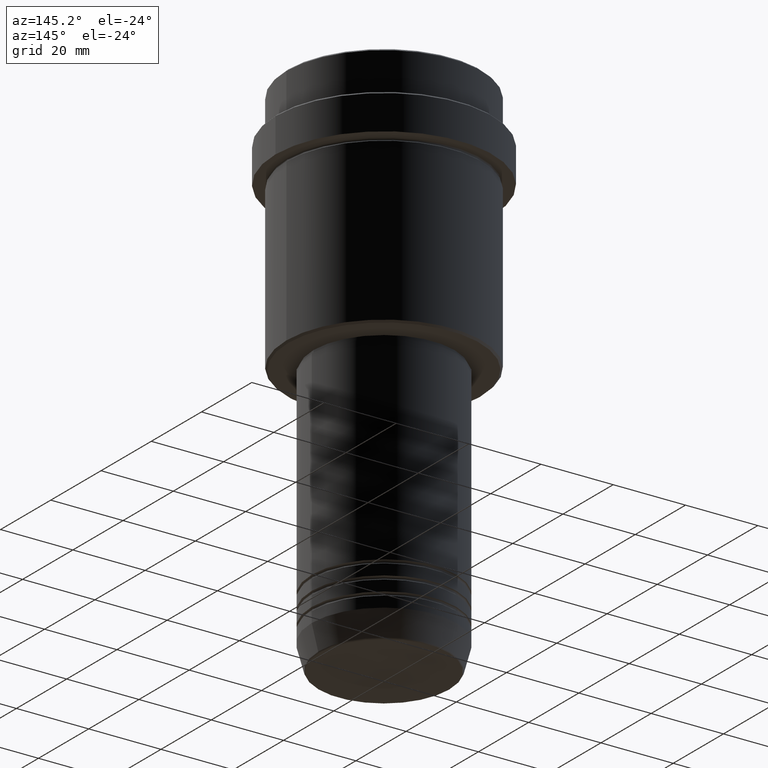
[diagram: clean part render]
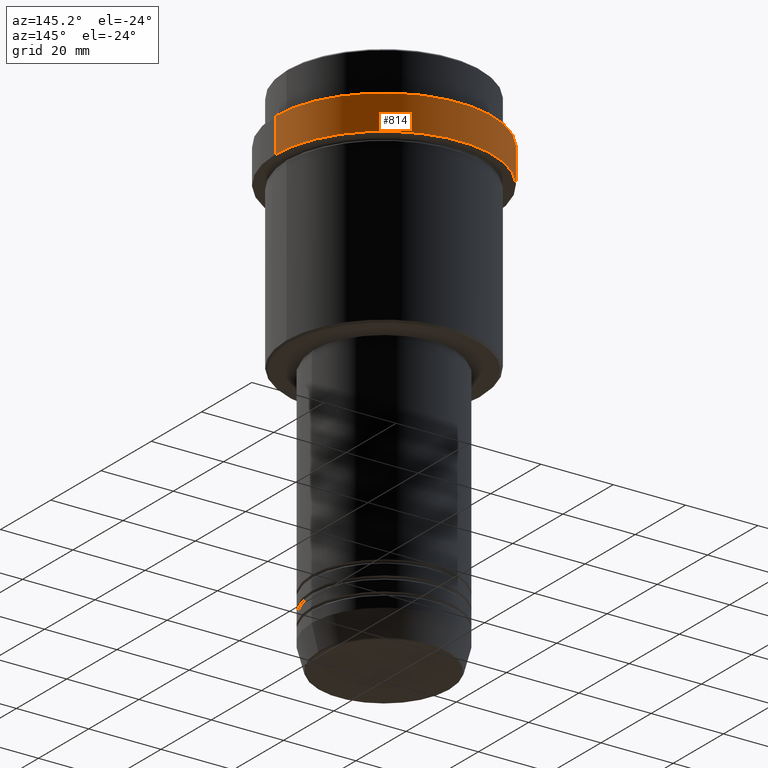
[diagram: same view with one face highlighted and labeled with its STEP entity id]
A machine part, auxiliary view. The second image highlights one B-rep face of the part: STEP entity #814.
In plain terms, the highlighted cylindrical surface (partial cylindrical patch) has radius 30 mm, axis along (-0, -0, 1).
Its self-contained STEP definition (entity closure, byte-faithful):
#1 = AXIS2_PLACEMENT_3D ( 'NONE', #1107, #1109, #238 ) ;
#9 = ORIENTED_EDGE ( 'NONE', *, *, #1337, .T. ) ;
#63 = EDGE_CURVE ( 'NONE', #1263, #966, #497, .T. ) ;
#69 = CARTESIAN_POINT ( 'NONE',  ( 0.000000000000000000, 0.000000000000000000, 0.000000000000000000 ) ) ;
#74 = DIRECTION ( 'NONE',  ( -0.000000000000000000, -0.000000000000000000, 1.000000000000000000 ) ) ;
#90 = AXIS2_PLACEMENT_3D ( 'NONE', #602, #265, #694 ) ;
#105 = VERTEX_POINT ( 'NONE', #704 ) ;
#106 = ORIENTED_EDGE ( 'NONE', *, *, #63, .T. ) ;
#132 = ORIENTED_EDGE ( 'NONE', *, *, #1055, .F. ) ;
#238 = DIRECTION ( 'NONE',  ( 1.000000000000000000, 0.000000000000000000, 0.000000000000000000 ) ) ;
#265 = DIRECTION ( 'NONE',  ( 0.000000000000000000, 0.000000000000000000, -1.000000000000000000 ) ) ;
#388 = VERTEX_POINT ( 'NONE', #1006 ) ;
#431 = DIRECTION ( 'NONE',  ( 1.000000000000000000, 0.000000000000000000, 0.000000000000000000 ) ) ;
#445 = CARTESIAN_POINT ( 'NONE',  ( 30.00000000000000000, 0.000000000000000000, 0.000000000000000000 ) ) ;
#472 = CIRCLE ( 'NONE', #1, 29.99999999999999645 ) ;
#497 = LINE ( 'NONE', #591, #869 ) ;
#576 = EDGE_LOOP ( 'NONE', ( #781, #106, #9, #132 ) ) ;
#588 = AXIS2_PLACEMENT_3D ( 'NONE', #69, #74, #431 ) ;
#591 = CARTESIAN_POINT ( 'NONE',  ( -30.00000000000000000, 3.673940397442059178E-15, 0.000000000000000000 ) ) ;
#602 = CARTESIAN_POINT ( 'NONE',  ( 0.000000000000000000, 0.000000000000000000, -12.50000000000000888 ) ) ;
#694 = DIRECTION ( 'NONE',  ( 1.000000000000000000, 0.000000000000000000, 0.000000000000000000 ) ) ;
#696 = VECTOR ( 'NONE', #891, 1000.000000000000000 ) ;
#704 = CARTESIAN_POINT ( 'NONE',  ( 30.00000000000000000, 0.000000000000000000, -12.50000000000000888 ) ) ;
#717 = FACE_OUTER_BOUND ( 'NONE', #576, .T. ) ;
#771 = CIRCLE ( 'NONE', #90, 30.00000000000000000 ) ;
#781 = ORIENTED_EDGE ( 'NONE', *, *, #960, .T. ) ;
#814 = ADVANCED_FACE ( 'NONE', ( #717 ), #1053, .T. ) ;
#857 = CARTESIAN_POINT ( 'NONE',  ( -30.00000000000000000, 3.673940397442059178E-15, -12.50000000000000888 ) ) ;
#869 = VECTOR ( 'NONE', #928, 1000.000000000000000 ) ;
#891 = DIRECTION ( 'NONE',  ( -0.000000000000000000, -0.000000000000000000, 1.000000000000000000 ) ) ;
#928 = DIRECTION ( 'NONE',  ( -0.000000000000000000, -0.000000000000000000, 1.000000000000000000 ) ) ;
#960 = EDGE_CURVE ( 'NONE', #388, #1263, #472, .T. ) ;
#966 = VERTEX_POINT ( 'NONE', #857 ) ;
#1006 = CARTESIAN_POINT ( 'NONE',  ( 29.99999999999999645, 0.000000000000000000, -22.00000000000000355 ) ) ;
#1030 = CARTESIAN_POINT ( 'NONE',  ( -29.99999999999999645, 3.673940397442058389E-15, -22.00000000000000355 ) ) ;
#1053 = CYLINDRICAL_SURFACE ( 'NONE', #588, 30.00000000000000000 ) ;
#1055 = EDGE_CURVE ( 'NONE', #388, #105, #1322, .T. ) ;
#1107 = CARTESIAN_POINT ( 'NONE',  ( 0.000000000000000000, 0.000000000000000000, -22.00000000000000355 ) ) ;
#1109 = DIRECTION ( 'NONE',  ( -0.000000000000000000, -0.000000000000000000, 1.000000000000000000 ) ) ;
#1263 = VERTEX_POINT ( 'NONE', #1030 ) ;
#1322 = LINE ( 'NONE', #445, #696 ) ;
#1337 = EDGE_CURVE ( 'NONE', #966, #105, #771, .T. ) ;